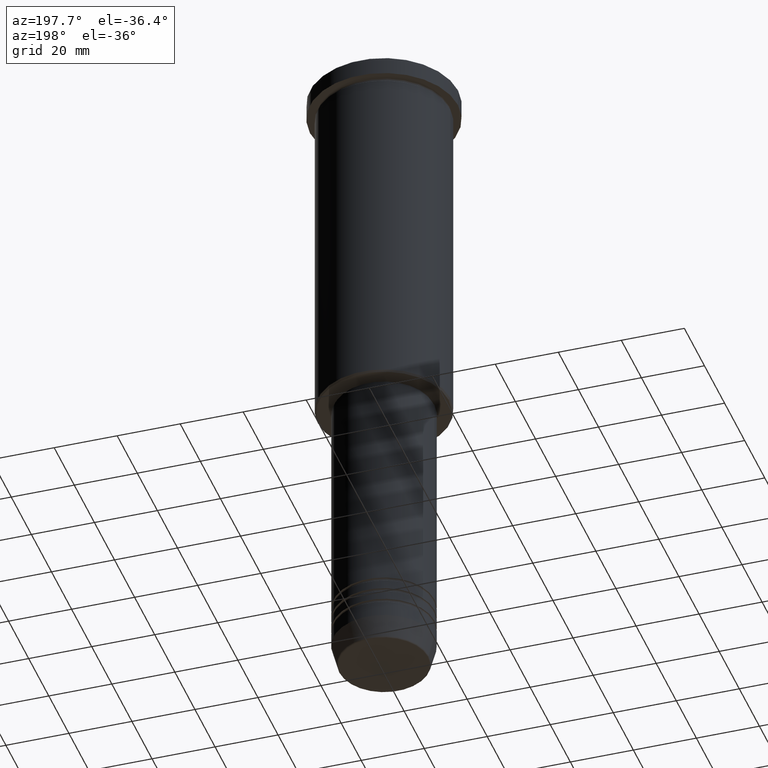
[diagram: clean part render]
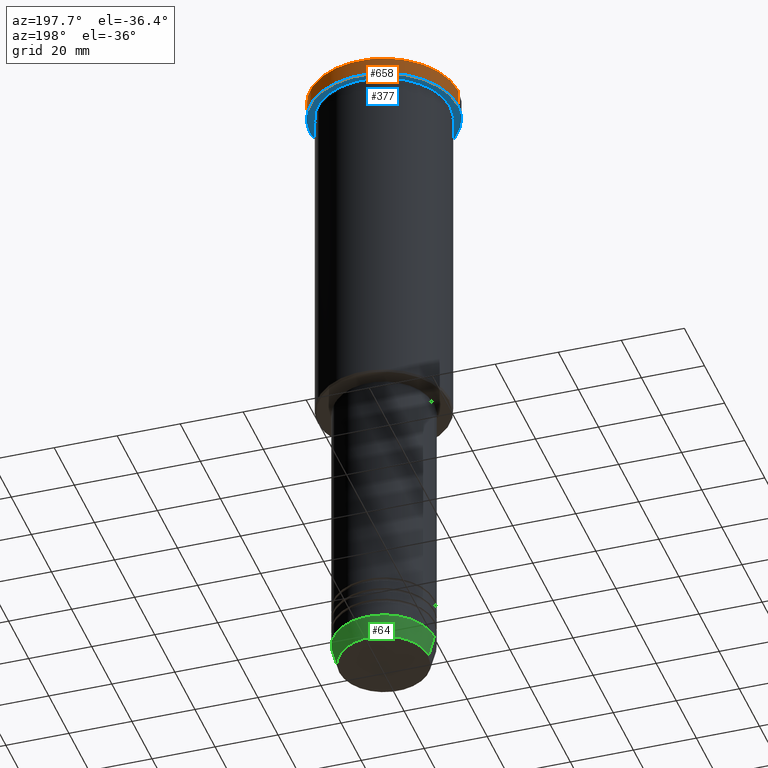
[diagram: same view with three faces highlighted in distinct colors, each labeled with its STEP entity id]
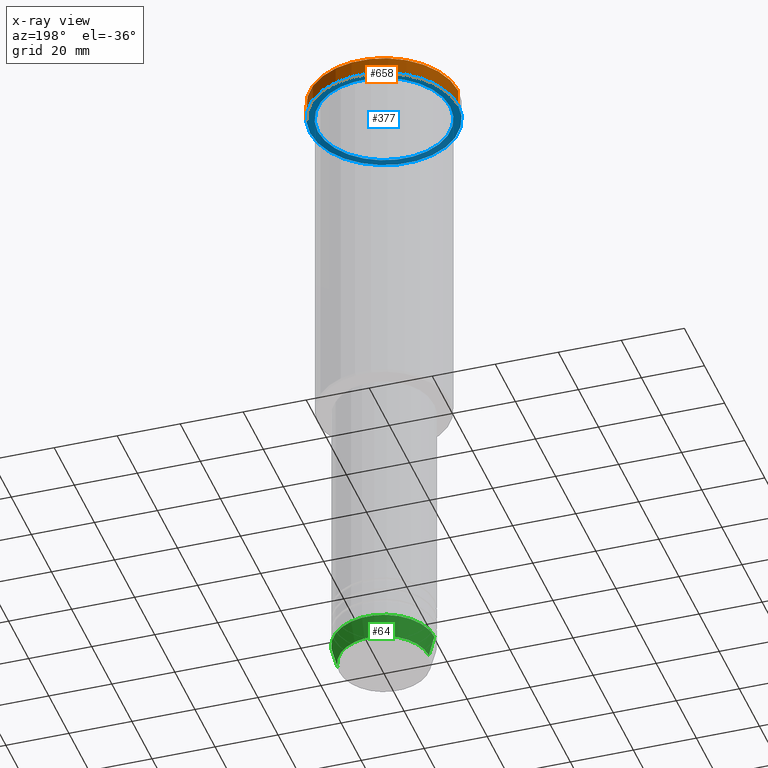
[diagram: x-ray of the same camera — body ghosted, the three highlighted faces saturated]
A machine part, auxiliary view with three faces highlighted in distinct colors.
The next image is the same camera in x-ray (body ghosted, the three faces saturated) — at least one of them is partly hidden behind the body in this view.
Their STEP definitions:

[orange] entity #658 — the highlighted cylindrical surface (partial cylindrical patch) has radius 23.5 mm, axis along (-0, -0, 1).
#68 = LINE ( 'NONE', #188, #897 ) ;
#73 = AXIS2_PLACEMENT_3D ( 'NONE', #888, #629, #359 ) ;
#80 = CARTESIAN_POINT ( 'NONE',  ( 0.000000000000000000, 0.000000000000000000, 0.000000000000000000 ) ) ;
#116 = ORIENTED_EDGE ( 'NONE', *, *, #656, .T. ) ;
#173 = ORIENTED_EDGE ( 'NONE', *, *, #1096, .T. ) ;
#175 = DIRECTION ( 'NONE',  ( -0.000000000000000000, -0.000000000000000000, 1.000000000000000000 ) ) ;
#188 = CARTESIAN_POINT ( 'NONE',  ( -23.50000000000000000, 2.877919977996280320E-15, 0.000000000000000000 ) ) ;
#216 = EDGE_CURVE ( 'NONE', #552, #1083, #647, .T. ) ;
#244 = AXIS2_PLACEMENT_3D ( 'NONE', #637, #465, #354 ) ;
#347 = CARTESIAN_POINT ( 'NONE',  ( 23.50000000000000000, 0.000000000000000000, 0.000000000000000000 ) ) ;
#354 = DIRECTION ( 'NONE',  ( 1.000000000000000000, 0.000000000000000000, 0.000000000000000000 ) ) ;
#359 = DIRECTION ( 'NONE',  ( 1.000000000000000000, 0.000000000000000000, 0.000000000000000000 ) ) ;
#379 = CARTESIAN_POINT ( 'NONE',  ( -23.50000000000000000, 2.877919977996280320E-15, -5.999999999999993783 ) ) ;
#458 = ORIENTED_EDGE ( 'NONE', *, *, #216, .T. ) ;
#465 = DIRECTION ( 'NONE',  ( -0.000000000000000000, -0.000000000000000000, 1.000000000000000000 ) ) ;
#476 = ORIENTED_EDGE ( 'NONE', *, *, #697, .F. ) ;
#524 = CIRCLE ( 'NONE', #73, 23.50000000000000000 ) ;
#529 = DIRECTION ( 'NONE',  ( 1.000000000000000000, 0.000000000000000000, 0.000000000000000000 ) ) ;
#552 = VERTEX_POINT ( 'NONE', #884 ) ;
#619 = DIRECTION ( 'NONE',  ( -0.000000000000000000, -0.000000000000000000, 1.000000000000000000 ) ) ;
#629 = DIRECTION ( 'NONE',  ( 0.000000000000000000, 0.000000000000000000, -1.000000000000000000 ) ) ;
#635 = FACE_OUTER_BOUND ( 'NONE', #842, .T. ) ;
#637 = CARTESIAN_POINT ( 'NONE',  ( 0.000000000000000000, 0.000000000000000000, -5.999999999999993783 ) ) ;
#647 = CIRCLE ( 'NONE', #244, 23.50000000000000000 ) ;
#656 = EDGE_CURVE ( 'NONE', #975, #763, #524, .T. ) ;
#658 = ADVANCED_FACE ( 'NONE', ( #635 ), #899, .T. ) ;
#697 = EDGE_CURVE ( 'NONE', #552, #763, #1174, .T. ) ;
#763 = VERTEX_POINT ( 'NONE', #807 ) ;
#805 = AXIS2_PLACEMENT_3D ( 'NONE', #80, #175, #529 ) ;
#807 = CARTESIAN_POINT ( 'NONE',  ( 23.50000000000000000, 0.000000000000000000, -0.5000000000000004441 ) ) ;
#842 = EDGE_LOOP ( 'NONE', ( #458, #173, #116, #476 ) ) ;
#884 = CARTESIAN_POINT ( 'NONE',  ( 23.50000000000000000, 0.000000000000000000, -5.999999999999993783 ) ) ;
#888 = CARTESIAN_POINT ( 'NONE',  ( 0.000000000000000000, 0.000000000000000000, -0.5000000000000004441 ) ) ;
#897 = VECTOR ( 'NONE', #898, 1000.000000000000000 ) ;
#898 = DIRECTION ( 'NONE',  ( -0.000000000000000000, -0.000000000000000000, 1.000000000000000000 ) ) ;
#899 = CYLINDRICAL_SURFACE ( 'NONE', #805, 23.50000000000000000 ) ;
#960 = CARTESIAN_POINT ( 'NONE',  ( -23.50000000000000000, 2.877919977996280320E-15, -0.5000000000000004441 ) ) ;
#975 = VERTEX_POINT ( 'NONE', #960 ) ;
#1083 = VERTEX_POINT ( 'NONE', #379 ) ;
#1096 = EDGE_CURVE ( 'NONE', #1083, #975, #68, .T. ) ;
#1174 = LINE ( 'NONE', #347, #1177 ) ;
#1177 = VECTOR ( 'NONE', #619, 1000.000000000000000 ) ;

[blue] entity #377 — the highlighted planar face has unit normal (0, 0, -1).
#2 = DIRECTION ( 'NONE',  ( -1.000000000000000000, 0.000000000000000000, -0.000000000000000000 ) ) ;
#7 = AXIS2_PLACEMENT_3D ( 'NONE', #321, #787, #690 ) ;
#19 = ORIENTED_EDGE ( 'NONE', *, *, #953, .T. ) ;
#25 = EDGE_LOOP ( 'NONE', ( #277, #1065 ) ) ;
#33 = DIRECTION ( 'NONE',  ( -0.000000000000000000, -0.000000000000000000, 1.000000000000000000 ) ) ;
#36 = CARTESIAN_POINT ( 'NONE',  ( 21.00000000000000000, 2.571758278209441661E-15, -5.999999999999992895 ) ) ;
#90 = CIRCLE ( 'NONE', #7, 21.00000000000000000 ) ;
#106 = CARTESIAN_POINT ( 'NONE',  ( 0.000000000000000000, 23.50000000000000000, -5.999999999999993783 ) ) ;
#120 = FACE_OUTER_BOUND ( 'NONE', #25, .T. ) ;
#129 = AXIS2_PLACEMENT_3D ( 'NONE', #625, #530, #734 ) ;
#178 = ORIENTED_EDGE ( 'NONE', *, *, #193, .T. ) ;
#193 = EDGE_CURVE ( 'NONE', #444, #608, #90, .T. ) ;
#216 = EDGE_CURVE ( 'NONE', #552, #1083, #647, .T. ) ;
#229 = CARTESIAN_POINT ( 'NONE',  ( 0.000000000000000000, 0.000000000000000000, -5.999999999999993783 ) ) ;
#244 = AXIS2_PLACEMENT_3D ( 'NONE', #637, #465, #354 ) ;
#250 = EDGE_CURVE ( 'NONE', #1083, #552, #554, .T. ) ;
#277 = ORIENTED_EDGE ( 'NONE', *, *, #216, .F. ) ;
#321 = CARTESIAN_POINT ( 'NONE',  ( 0.000000000000000000, 0.000000000000000000, -5.999999999999993783 ) ) ;
#333 = DIRECTION ( 'NONE',  ( -1.000000000000000000, 0.000000000000000000, 0.000000000000000000 ) ) ;
#354 = DIRECTION ( 'NONE',  ( 1.000000000000000000, 0.000000000000000000, 0.000000000000000000 ) ) ;
#369 = EDGE_LOOP ( 'NONE', ( #178, #19 ) ) ;
#377 = ADVANCED_FACE ( 'NONE', ( #1097, #120 ), #755, .T. ) ;
#379 = CARTESIAN_POINT ( 'NONE',  ( -23.50000000000000000, 2.877919977996280320E-15, -5.999999999999993783 ) ) ;
#444 = VERTEX_POINT ( 'NONE', #1013 ) ;
#449 = AXIS2_PLACEMENT_3D ( 'NONE', #229, #33, #333 ) ;
#465 = DIRECTION ( 'NONE',  ( -0.000000000000000000, -0.000000000000000000, 1.000000000000000000 ) ) ;
#495 = DIRECTION ( 'NONE',  ( 0.000000000000000000, 0.000000000000000000, -1.000000000000000000 ) ) ;
#530 = DIRECTION ( 'NONE',  ( -0.000000000000000000, -0.000000000000000000, 1.000000000000000000 ) ) ;
#552 = VERTEX_POINT ( 'NONE', #884 ) ;
#554 = CIRCLE ( 'NONE', #129, 23.50000000000000000 ) ;
#555 = AXIS2_PLACEMENT_3D ( 'NONE', #106, #495, #2 ) ;
#608 = VERTEX_POINT ( 'NONE', #36 ) ;
#617 = CIRCLE ( 'NONE', #449, 21.00000000000000000 ) ;
#625 = CARTESIAN_POINT ( 'NONE',  ( 0.000000000000000000, 0.000000000000000000, -5.999999999999993783 ) ) ;
#637 = CARTESIAN_POINT ( 'NONE',  ( 0.000000000000000000, 0.000000000000000000, -5.999999999999993783 ) ) ;
#647 = CIRCLE ( 'NONE', #244, 23.50000000000000000 ) ;
#690 = DIRECTION ( 'NONE',  ( -1.000000000000000000, 0.000000000000000000, 0.000000000000000000 ) ) ;
#734 = DIRECTION ( 'NONE',  ( 1.000000000000000000, 0.000000000000000000, 0.000000000000000000 ) ) ;
#755 = PLANE ( 'NONE',  #555 ) ;
#787 = DIRECTION ( 'NONE',  ( -0.000000000000000000, -0.000000000000000000, 1.000000000000000000 ) ) ;
#884 = CARTESIAN_POINT ( 'NONE',  ( 23.50000000000000000, 0.000000000000000000, -5.999999999999993783 ) ) ;
#953 = EDGE_CURVE ( 'NONE', #608, #444, #617, .T. ) ;
#1013 = CARTESIAN_POINT ( 'NONE',  ( -21.00000000000000000, 0.000000000000000000, -5.999999999999992895 ) ) ;
#1065 = ORIENTED_EDGE ( 'NONE', *, *, #250, .F. ) ;
#1083 = VERTEX_POINT ( 'NONE', #379 ) ;
#1097 = FACE_BOUND ( 'NONE', #369, .T. ) ;

[green] entity #64 — the highlighted conical surface has half-angle 15 deg.
#1 = CARTESIAN_POINT ( 'NONE',  ( 16.00000000000000000, 0.000000000000000000, -204.0000000000000284 ) ) ;
#64 = ADVANCED_FACE ( 'NONE', ( #793 ), #930, .T. ) ;
#70 = CARTESIAN_POINT ( 'NONE',  ( 0.000000000000000000, 0.000000000000000000, -210.6294095225512706 ) ) ;
#87 = EDGE_CURVE ( 'NONE', #426, #789, #796, .T. ) ;
#94 = CIRCLE ( 'NONE', #882, 16.00000000000000000 ) ;
#107 = EDGE_CURVE ( 'NONE', #461, #1000, #1156, .T. ) ;
#205 = VECTOR ( 'NONE', #607, 1000.000000000000000 ) ;
#335 = DIRECTION ( 'NONE',  ( -0.000000000000000000, -0.000000000000000000, 1.000000000000000000 ) ) ;
#353 = DIRECTION ( 'NONE',  ( -0.000000000000000000, -0.000000000000000000, 1.000000000000000000 ) ) ;
#404 = VECTOR ( 'NONE', #502, 1000.000000000000000 ) ;
#408 = ORIENTED_EDGE ( 'NONE', *, *, #1071, .F. ) ;
#426 = VERTEX_POINT ( 'NONE', #644 ) ;
#429 = DIRECTION ( 'NONE',  ( 1.000000000000000000, 0.000000000000000000, 0.000000000000000000 ) ) ;
#461 = VERTEX_POINT ( 'NONE', #760 ) ;
#502 = DIRECTION ( 'NONE',  ( 0.2588190451025213501, 0.000000000000000000, 0.9659258262890680902 ) ) ;
#559 = AXIS2_PLACEMENT_3D ( 'NONE', #70, #353, #1075 ) ;
#607 = DIRECTION ( 'NONE',  ( -0.2588190451025213501, 3.169619151431772337E-17, 0.9659258262890680902 ) ) ;
#611 = CARTESIAN_POINT ( 'NONE',  ( 16.00000000000000000, 0.000000000000000000, -204.0000000000000284 ) ) ;
#644 = CARTESIAN_POINT ( 'NONE',  ( 14.22365507213718239, 0.000000000000000000, -210.6294095225512706 ) ) ;
#685 = DIRECTION ( 'NONE',  ( 1.000000000000000000, 0.000000000000000000, 0.000000000000000000 ) ) ;
#686 = ORIENTED_EDGE ( 'NONE', *, *, #87, .F. ) ;
#687 = DIRECTION ( 'NONE',  ( -0.000000000000000000, -0.000000000000000000, 1.000000000000000000 ) ) ;
#694 = CARTESIAN_POINT ( 'NONE',  ( -16.00000000000000000, 1.959434878635765131E-15, -204.0000000000000284 ) ) ;
#758 = ORIENTED_EDGE ( 'NONE', *, *, #782, .T. ) ;
#760 = CARTESIAN_POINT ( 'NONE',  ( -14.22365507213718239, 1.850665122131322942E-15, -210.6294095225512706 ) ) ;
#781 = CARTESIAN_POINT ( 'NONE',  ( -16.00000000000000000, 1.959434878635765131E-15, -204.0000000000000284 ) ) ;
#782 = EDGE_CURVE ( 'NONE', #426, #461, #992, .T. ) ;
#789 = VERTEX_POINT ( 'NONE', #1 ) ;
#793 = FACE_OUTER_BOUND ( 'NONE', #1061, .T. ) ;
#796 = LINE ( 'NONE', #611, #404 ) ;
#882 = AXIS2_PLACEMENT_3D ( 'NONE', #1040, #687, #429 ) ;
#930 = CONICAL_SURFACE ( 'NONE', #1004, 16.00000000000000000, 0.2617993877991500740 ) ;
#992 = CIRCLE ( 'NONE', #559, 14.22365507213718239 ) ;
#1000 = VERTEX_POINT ( 'NONE', #694 ) ;
#1001 = ORIENTED_EDGE ( 'NONE', *, *, #107, .T. ) ;
#1004 = AXIS2_PLACEMENT_3D ( 'NONE', #1054, #335, #685 ) ;
#1040 = CARTESIAN_POINT ( 'NONE',  ( 0.000000000000000000, 0.000000000000000000, -204.0000000000000284 ) ) ;
#1054 = CARTESIAN_POINT ( 'NONE',  ( 0.000000000000000000, 0.000000000000000000, -204.0000000000000284 ) ) ;
#1061 = EDGE_LOOP ( 'NONE', ( #758, #1001, #408, #686 ) ) ;
#1071 = EDGE_CURVE ( 'NONE', #789, #1000, #94, .T. ) ;
#1075 = DIRECTION ( 'NONE',  ( 1.000000000000000000, 0.000000000000000000, 0.000000000000000000 ) ) ;
#1156 = LINE ( 'NONE', #781, #205 ) ;